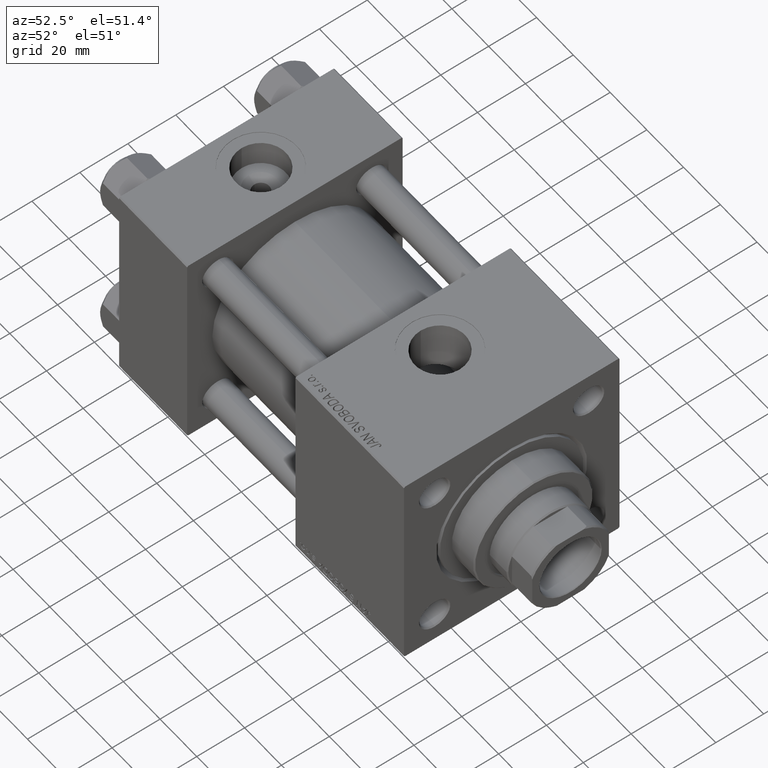
[diagram: clean part render]
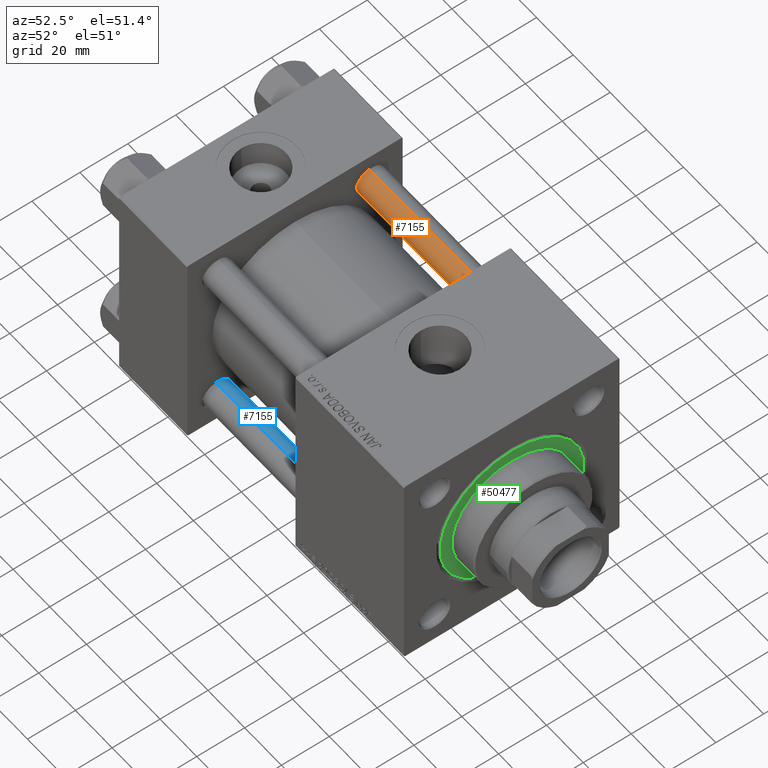
[diagram: same view with three faces highlighted in distinct colors, each labeled with its STEP entity id]
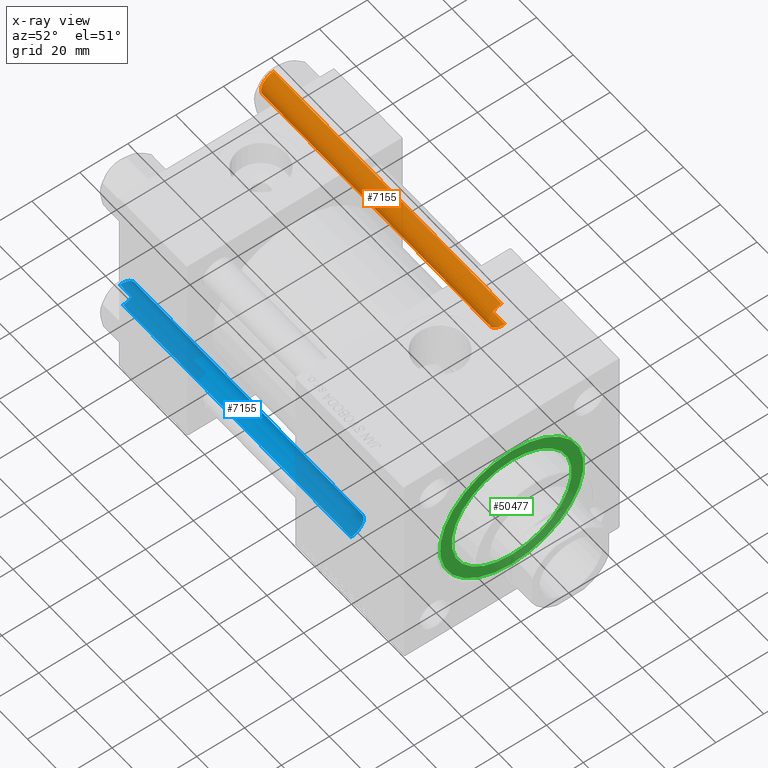
[diagram: x-ray of the same camera — body ghosted, the three highlighted faces saturated]
A machine part, auxiliary view with three faces highlighted in distinct colors.
The next image is the same camera in x-ray (body ghosted, the three faces saturated) — at least one of them is partly hidden behind the body in this view.
Their STEP definitions:

[orange] entity #7155 — the highlighted cylindrical surface (edge-blend (fillet) strip) has radius 6 mm, axis along (-1, 0, 0).
#505 = DIRECTION ( 'NONE',  ( -0.000000000000000000, -0.000000000000000000, 1.000000000000000000 ) ) ;
#3179 = FACE_OUTER_BOUND ( 'NONE', #39138, .T. ) ;
#3493 = CARTESIAN_POINT ( 'NONE',  ( -6.000000000000000888, 0.000000000000000000, 125.0000000000000000 ) ) ;
#4740 = CIRCLE ( 'NONE', #13104, 6.000000000000000888 ) ;
#6457 = VECTOR ( 'NONE', #40446, 1000.000000000000000 ) ;
#6964 = CARTESIAN_POINT ( 'NONE',  ( 6.000000000000000888, 7.347880794884120722E-16, 0.4999999999999865663 ) ) ;
#7155 = ADVANCED_FACE ( 'NONE', ( #3179 ), #15266, .T. ) ;
#7911 = LINE ( 'NONE', #40201, #6457 ) ;
#11326 = DIRECTION ( 'NONE',  ( -0.000000000000000000, -0.000000000000000000, -1.000000000000000000 ) ) ;
#12347 = EDGE_CURVE ( 'NONE', #22959, #23119, #4740, .T. ) ;
#12837 = DIRECTION ( 'NONE',  ( 1.000000000000000000, 0.000000000000000000, 0.000000000000000000 ) ) ;
#12989 = VECTOR ( 'NONE', #19774, 1000.000000000000000 ) ;
#13104 = AXIS2_PLACEMENT_3D ( 'NONE', #30605, #15118, #46618 ) ;
#13130 = ORIENTED_EDGE ( 'NONE', *, *, #31543, .T. ) ;
#14620 = EDGE_CURVE ( 'NONE', #22959, #39521, #7911, .T. ) ;
#15032 = CARTESIAN_POINT ( 'NONE',  ( -6.000000000000000888, 0.000000000000000000, 0.4999999999999865663 ) ) ;
#15118 = DIRECTION ( 'NONE',  ( 0.000000000000000000, 0.000000000000000000, -1.000000000000000000 ) ) ;
#15266 = CYLINDRICAL_SURFACE ( 'NONE', #33897, 6.000000000000000888 ) ;
#16914 = ORIENTED_EDGE ( 'NONE', *, *, #33954, .T. ) ;
#19356 = CARTESIAN_POINT ( 'NONE',  ( -6.000000000000000888, 0.000000000000000000, 124.5000000000000000 ) ) ;
#19774 = DIRECTION ( 'NONE',  ( -0.000000000000000000, -0.000000000000000000, -1.000000000000000000 ) ) ;
#22959 = VERTEX_POINT ( 'NONE', #50608 ) ;
#23119 = VERTEX_POINT ( 'NONE', #19356 ) ;
#23643 = CARTESIAN_POINT ( 'NONE',  ( 0.000000000000000000, 0.000000000000000000, 125.0000000000000000 ) ) ;
#29769 = ORIENTED_EDGE ( 'NONE', *, *, #14620, .F. ) ;
#30605 = CARTESIAN_POINT ( 'NONE',  ( 0.000000000000000000, 0.000000000000000000, 124.5000000000000000 ) ) ;
#31273 = DIRECTION ( 'NONE',  ( -1.000000000000000000, 0.000000000000000000, 0.000000000000000000 ) ) ;
#31543 = EDGE_CURVE ( 'NONE', #23119, #41986, #47344, .T. ) ;
#33897 = AXIS2_PLACEMENT_3D ( 'NONE', #23643, #11326, #31273 ) ;
#33954 = EDGE_CURVE ( 'NONE', #41986, #39521, #35712, .T. ) ;
#35712 = CIRCLE ( 'NONE', #40715, 6.000000000000000888 ) ;
#36988 = CARTESIAN_POINT ( 'NONE',  ( 0.000000000000000000, 0.000000000000000000, 0.4999999999999865663 ) ) ;
#39138 = EDGE_LOOP ( 'NONE', ( #29769, #48397, #13130, #16914 ) ) ;
#39521 = VERTEX_POINT ( 'NONE', #6964 ) ;
#40201 = CARTESIAN_POINT ( 'NONE',  ( 6.000000000000000888, 7.347880794884120722E-16, 125.0000000000000000 ) ) ;
#40446 = DIRECTION ( 'NONE',  ( -0.000000000000000000, -0.000000000000000000, -1.000000000000000000 ) ) ;
#40715 = AXIS2_PLACEMENT_3D ( 'NONE', #36988, #505, #12837 ) ;
#41986 = VERTEX_POINT ( 'NONE', #15032 ) ;
#46618 = DIRECTION ( 'NONE',  ( 1.000000000000000000, 0.000000000000000000, 0.000000000000000000 ) ) ;
#47344 = LINE ( 'NONE', #3493, #12989 ) ;
#48397 = ORIENTED_EDGE ( 'NONE', *, *, #12347, .T. ) ;
#50608 = CARTESIAN_POINT ( 'NONE',  ( 6.000000000000000888, 7.347880794884120722E-16, 124.5000000000000000 ) ) ;

[blue] entity #7155 — the highlighted cylindrical surface (edge-blend (fillet) strip) has radius 6 mm, axis along (-1, -0, -0).
#505 = DIRECTION ( 'NONE',  ( -0.000000000000000000, -0.000000000000000000, 1.000000000000000000 ) ) ;
#3179 = FACE_OUTER_BOUND ( 'NONE', #39138, .T. ) ;
#3493 = CARTESIAN_POINT ( 'NONE',  ( -6.000000000000000888, 0.000000000000000000, 125.0000000000000000 ) ) ;
#4740 = CIRCLE ( 'NONE', #13104, 6.000000000000000888 ) ;
#6457 = VECTOR ( 'NONE', #40446, 1000.000000000000000 ) ;
#6964 = CARTESIAN_POINT ( 'NONE',  ( 6.000000000000000888, 7.347880794884120722E-16, 0.4999999999999865663 ) ) ;
#7155 = ADVANCED_FACE ( 'NONE', ( #3179 ), #15266, .T. ) ;
#7911 = LINE ( 'NONE', #40201, #6457 ) ;
#11326 = DIRECTION ( 'NONE',  ( -0.000000000000000000, -0.000000000000000000, -1.000000000000000000 ) ) ;
#12347 = EDGE_CURVE ( 'NONE', #22959, #23119, #4740, .T. ) ;
#12837 = DIRECTION ( 'NONE',  ( 1.000000000000000000, 0.000000000000000000, 0.000000000000000000 ) ) ;
#12989 = VECTOR ( 'NONE', #19774, 1000.000000000000000 ) ;
#13104 = AXIS2_PLACEMENT_3D ( 'NONE', #30605, #15118, #46618 ) ;
#13130 = ORIENTED_EDGE ( 'NONE', *, *, #31543, .T. ) ;
#14620 = EDGE_CURVE ( 'NONE', #22959, #39521, #7911, .T. ) ;
#15032 = CARTESIAN_POINT ( 'NONE',  ( -6.000000000000000888, 0.000000000000000000, 0.4999999999999865663 ) ) ;
#15118 = DIRECTION ( 'NONE',  ( 0.000000000000000000, 0.000000000000000000, -1.000000000000000000 ) ) ;
#15266 = CYLINDRICAL_SURFACE ( 'NONE', #33897, 6.000000000000000888 ) ;
#16914 = ORIENTED_EDGE ( 'NONE', *, *, #33954, .T. ) ;
#19356 = CARTESIAN_POINT ( 'NONE',  ( -6.000000000000000888, 0.000000000000000000, 124.5000000000000000 ) ) ;
#19774 = DIRECTION ( 'NONE',  ( -0.000000000000000000, -0.000000000000000000, -1.000000000000000000 ) ) ;
#22959 = VERTEX_POINT ( 'NONE', #50608 ) ;
#23119 = VERTEX_POINT ( 'NONE', #19356 ) ;
#23643 = CARTESIAN_POINT ( 'NONE',  ( 0.000000000000000000, 0.000000000000000000, 125.0000000000000000 ) ) ;
#29769 = ORIENTED_EDGE ( 'NONE', *, *, #14620, .F. ) ;
#30605 = CARTESIAN_POINT ( 'NONE',  ( 0.000000000000000000, 0.000000000000000000, 124.5000000000000000 ) ) ;
#31273 = DIRECTION ( 'NONE',  ( -1.000000000000000000, 0.000000000000000000, 0.000000000000000000 ) ) ;
#31543 = EDGE_CURVE ( 'NONE', #23119, #41986, #47344, .T. ) ;
#33897 = AXIS2_PLACEMENT_3D ( 'NONE', #23643, #11326, #31273 ) ;
#33954 = EDGE_CURVE ( 'NONE', #41986, #39521, #35712, .T. ) ;
#35712 = CIRCLE ( 'NONE', #40715, 6.000000000000000888 ) ;
#36988 = CARTESIAN_POINT ( 'NONE',  ( 0.000000000000000000, 0.000000000000000000, 0.4999999999999865663 ) ) ;
#39138 = EDGE_LOOP ( 'NONE', ( #29769, #48397, #13130, #16914 ) ) ;
#39521 = VERTEX_POINT ( 'NONE', #6964 ) ;
#40201 = CARTESIAN_POINT ( 'NONE',  ( 6.000000000000000888, 7.347880794884120722E-16, 125.0000000000000000 ) ) ;
#40446 = DIRECTION ( 'NONE',  ( -0.000000000000000000, -0.000000000000000000, -1.000000000000000000 ) ) ;
#40715 = AXIS2_PLACEMENT_3D ( 'NONE', #36988, #505, #12837 ) ;
#41986 = VERTEX_POINT ( 'NONE', #15032 ) ;
#46618 = DIRECTION ( 'NONE',  ( 1.000000000000000000, 0.000000000000000000, 0.000000000000000000 ) ) ;
#47344 = LINE ( 'NONE', #3493, #12989 ) ;
#48397 = ORIENTED_EDGE ( 'NONE', *, *, #12347, .T. ) ;
#50608 = CARTESIAN_POINT ( 'NONE',  ( 6.000000000000000888, 7.347880794884120722E-16, 124.5000000000000000 ) ) ;

[green] entity #50477 — the highlighted planar face has unit normal (1, 0, 0).
#1363 = EDGE_CURVE ( 'NONE', #3358, #1677, #32982, .T. ) ;
#1677 = VERTEX_POINT ( 'NONE', #17843 ) ;
#3229 = VERTEX_POINT ( 'NONE', #45247 ) ;
#3321 = DIRECTION ( 'NONE',  ( 0.000000000000000000, 0.000000000000000000, 1.000000000000000000 ) ) ;
#3341 = ORIENTED_EDGE ( 'NONE', *, *, #1363, .F. ) ;
#3349 = AXIS2_PLACEMENT_3D ( 'NONE', #11471, #3321, #42700 ) ;
#3358 = VERTEX_POINT ( 'NONE', #23164 ) ;
#6226 = CIRCLE ( 'NONE', #47328, 30.00000000000000000 ) ;
#7822 = ORIENTED_EDGE ( 'NONE', *, *, #8483, .T. ) ;
#8483 = EDGE_CURVE ( 'NONE', #38087, #3229, #6226, .T. ) ;
#9067 = CARTESIAN_POINT ( 'NONE',  ( 0.000000000000000000, 0.000000000000000000, 28.69999999999999929 ) ) ;
#9287 = AXIS2_PLACEMENT_3D ( 'NONE', #42682, #15122, #31134 ) ;
#10260 = EDGE_CURVE ( 'NONE', #1677, #3358, #28956, .T. ) ;
#10324 = AXIS2_PLACEMENT_3D ( 'NONE', #11980, #32456, #27990 ) ;
#11471 = CARTESIAN_POINT ( 'NONE',  ( 0.000000000000000000, 0.000000000000000000, 28.69999999999999929 ) ) ;
#11980 = CARTESIAN_POINT ( 'NONE',  ( 0.000000000000000000, 0.000000000000000000, 28.69999999999999929 ) ) ;
#13769 = DIRECTION ( 'NONE',  ( 0.000000000000000000, 0.000000000000000000, 1.000000000000000000 ) ) ;
#15122 = DIRECTION ( 'NONE',  ( 0.000000000000000000, 0.000000000000000000, 1.000000000000000000 ) ) ;
#15927 = DIRECTION ( 'NONE',  ( 1.000000000000000000, 0.000000000000000000, 0.000000000000000000 ) ) ;
#17843 = CARTESIAN_POINT ( 'NONE',  ( 25.00000000000000000, 3.061616997868383043E-15, 28.69999999999999929 ) ) ;
#20164 = ORIENTED_EDGE ( 'NONE', *, *, #46737, .T. ) ;
#23164 = CARTESIAN_POINT ( 'NONE',  ( -25.00000000000000000, 0.000000000000000000, 28.69999999999999929 ) ) ;
#23523 = DIRECTION ( 'NONE',  ( 0.000000000000000000, 0.000000000000000000, 1.000000000000000000 ) ) ;
#26058 = CARTESIAN_POINT ( 'NONE',  ( 30.00000000000000000, 3.673940397442059178E-15, 28.69999999999999929 ) ) ;
#27990 = DIRECTION ( 'NONE',  ( 1.000000000000000000, 0.000000000000000000, 0.000000000000000000 ) ) ;
#28956 = CIRCLE ( 'NONE', #44070, 25.00000000000000000 ) ;
#29076 = EDGE_LOOP ( 'NONE', ( #20164, #7822 ) ) ;
#31134 = DIRECTION ( 'NONE',  ( 1.000000000000000000, 0.000000000000000000, -0.000000000000000000 ) ) ;
#32456 = DIRECTION ( 'NONE',  ( 0.000000000000000000, 0.000000000000000000, 1.000000000000000000 ) ) ;
#32982 = CIRCLE ( 'NONE', #10324, 25.00000000000000000 ) ;
#36756 = EDGE_LOOP ( 'NONE', ( #3341, #36903 ) ) ;
#36903 = ORIENTED_EDGE ( 'NONE', *, *, #10260, .F. ) ;
#38087 = VERTEX_POINT ( 'NONE', #26058 ) ;
#38532 = CIRCLE ( 'NONE', #3349, 30.00000000000000000 ) ;
#41602 = DIRECTION ( 'NONE',  ( 1.000000000000000000, 0.000000000000000000, 0.000000000000000000 ) ) ;
#42682 = CARTESIAN_POINT ( 'NONE',  ( 0.000000000000000000, 0.000000000000000000, 28.69999999999999929 ) ) ;
#42700 = DIRECTION ( 'NONE',  ( 1.000000000000000000, 0.000000000000000000, 0.000000000000000000 ) ) ;
#42941 = FACE_OUTER_BOUND ( 'NONE', #29076, .T. ) ;
#44070 = AXIS2_PLACEMENT_3D ( 'NONE', #9067, #13769, #41602 ) ;
#45247 = CARTESIAN_POINT ( 'NONE',  ( -30.00000000000000000, 0.000000000000000000, 28.69999999999999929 ) ) ;
#46622 = FACE_BOUND ( 'NONE', #36756, .T. ) ;
#46737 = EDGE_CURVE ( 'NONE', #3229, #38087, #38532, .T. ) ;
#47328 = AXIS2_PLACEMENT_3D ( 'NONE', #47955, #23523, #15927 ) ;
#47413 = PLANE ( 'NONE',  #9287 ) ;
#47955 = CARTESIAN_POINT ( 'NONE',  ( 0.000000000000000000, 0.000000000000000000, 28.69999999999999929 ) ) ;
#50477 = ADVANCED_FACE ( 'NONE', ( #46622, #42941 ), #47413, .T. ) ;